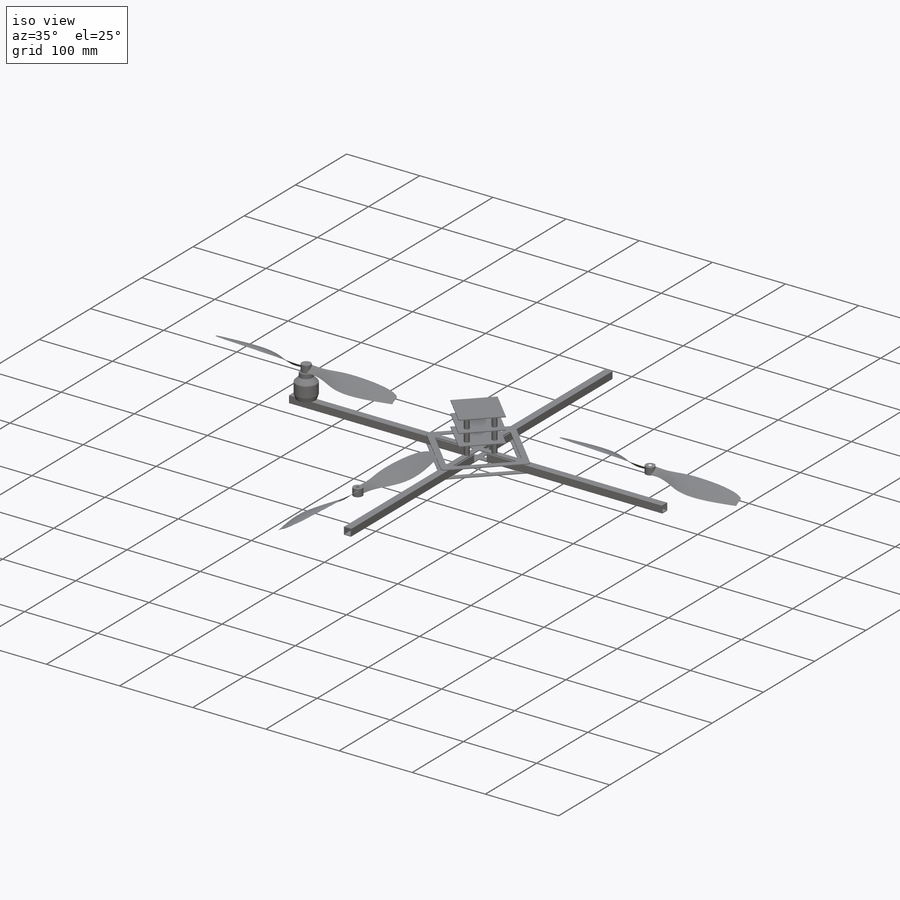
[diagram: iso view]
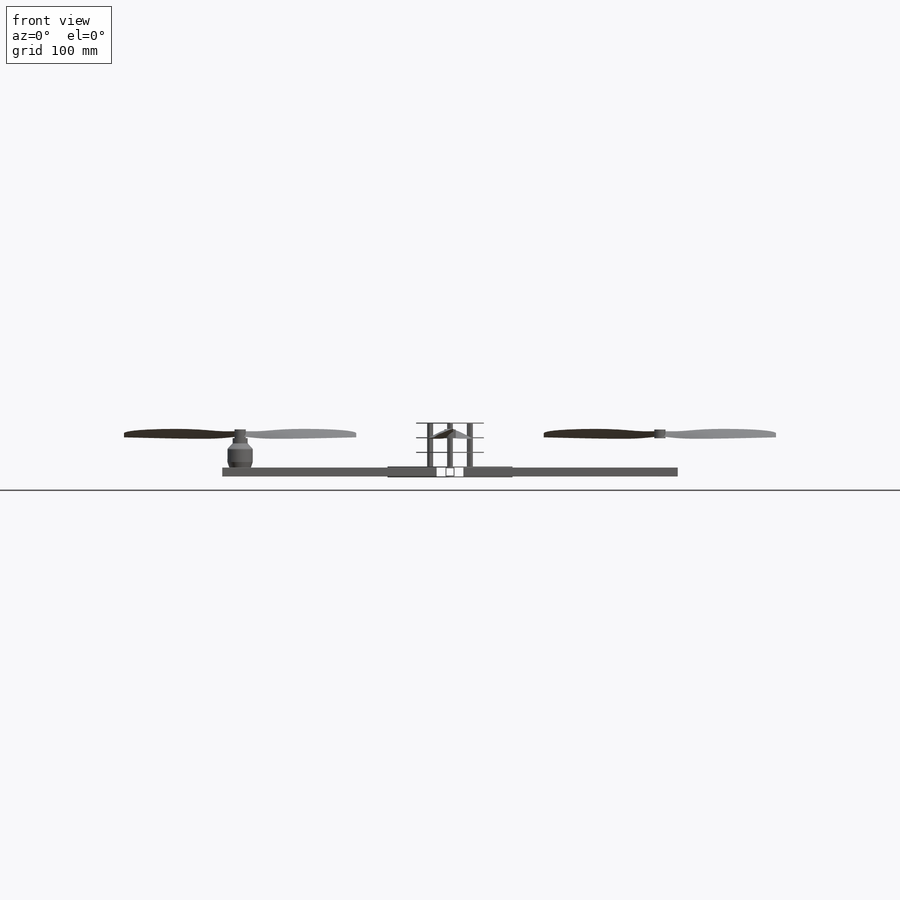
[diagram: front view]
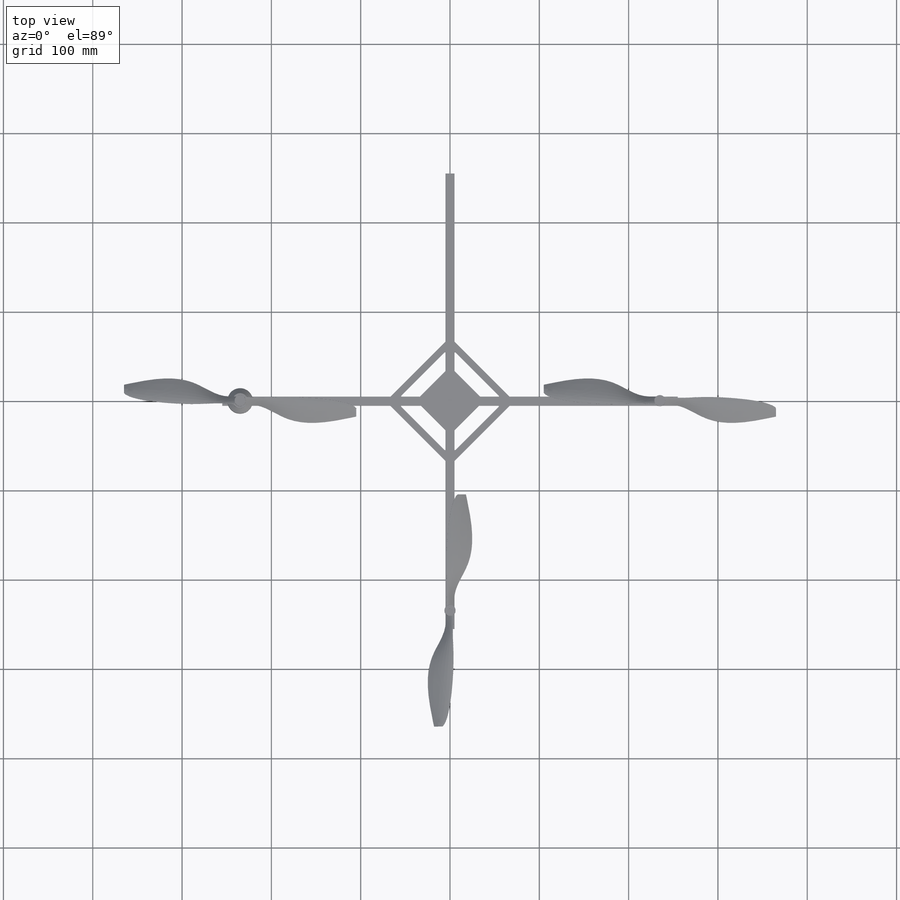
[diagram: top view]
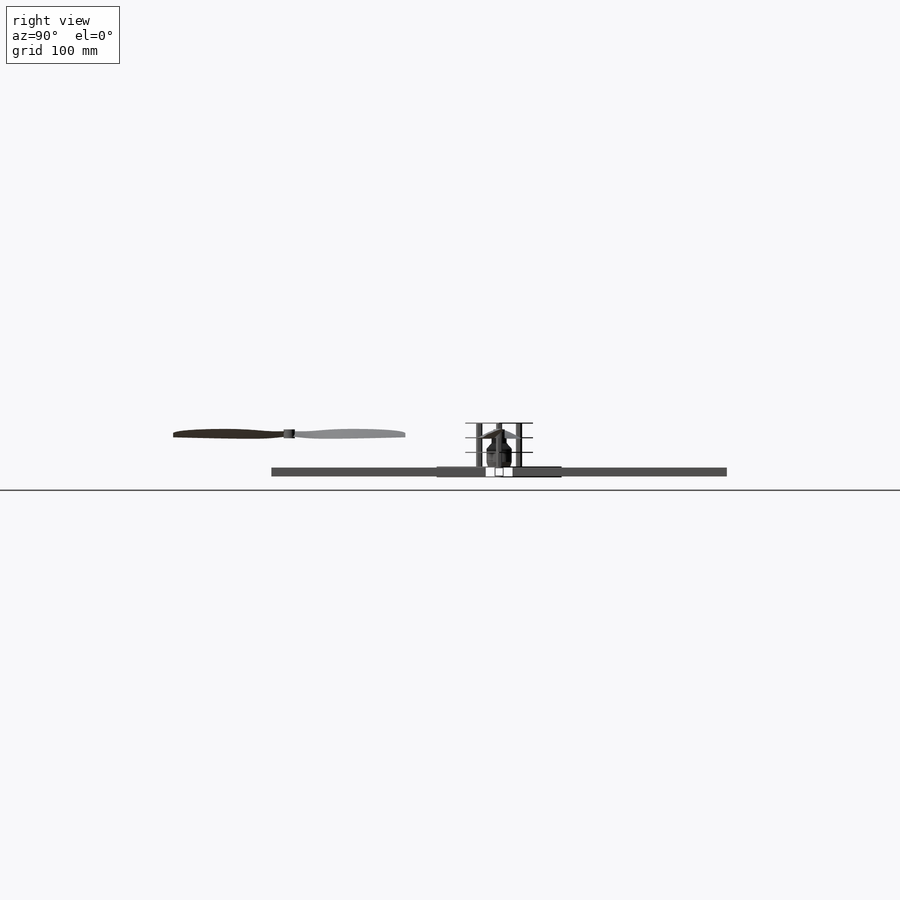
[diagram: right view]
SOLIDWORKS PART (.sldprt)
format: sldprt  version: not decoded by parser v0  size: 1,707,520 bytes
history: native  units: mm
features: sketch x16, plane x14, extrude x7, pattern_circular x4, fillet x4, pattern_linear x2, revolve x2, cut_extrude x2, move_body x2, material x1, mirror x1 (+16 scaffold rows collapsed; 2 parser-record rows omitted)
feature tree (73):
  scaffold x16  (default folders/planes/origin — collapsed)
  material  "Material <not specified>"
  plane  "Plane1"  Offset=15mm
  sketch  "Sketch1"  dims[D3=0.5mm D1=10.002mm D2=0.93mm]
  extrude  "MAIN-SPAR"  Depth=240mm
  pattern_circular  "SPAR-CirPattern2"  Count=4 Angle=360deg
  sketch  "Sketch3"  dims[c1.D2=4.0mm c1.D6=1.5mm c1.D1=101.4mm c1.D3=7.72mm c1.D4=7.72mm c1.D5=7.72mm c2.D4=3.86mm c2.D5=3.86mm]
  extrude  "BodyPlate"  Depth=1.05mm
  mirror  "Mirror1"
  sketch  "Sketch4"  dims[c1.D1=~5.426277mm c1.D2=6.0mm c2.D1=44.5mm]
  extrude  "Boss-Extrude4"  Depth=15.27mm
  sketch  "Sketch5"  dims[D1=53.7mm]
  extrude  "Boss-Extrude5"  Depth=1.09mm
  pattern_linear  "PCB-Pattern"  Count1=3 Count2=1 Spacing1=16.36mm Spacing2=50mm
  sketch  "Sketch9"  dims[D1=25.0mm]
  extrude  "GPS"  Depth=3.86mm
  sketch  "Sketch6"  dims[c1.D11=2.0mm c1.D1=235.0mm c1.D2=5.45mm c1.D3=27.0mm c1.D4=8.45mm c1.D5=42.65mm c2.D3=27.0mm c2.D6=9.85mm c2.D7=14.2mm c2.D8=12.15mm c2.D9=6.12mm c2.D10=6.2mm]
  revolve  "Motor"  Angle=360deg
  revolve  "Prop-10x4_5 Features1___EndTag___"  [1 undecoded]
  sketch  "Sketch1_Prop-10x4_5"  dims[D1=12.5mm]
  extrude  "Extrude1"  Depth=10mm
  plane  "Plane1_Prop-10x4_5"  Offset=10mm
  plane  "Plane2"  Offset=10mm
  plane  "Plane3"  Offset=10mm
  plane  "Plane4"  Offset=10mm
  plane  "Plane5"  Offset=10mm
  plane  "Plane6"  Offset=10mm
  plane  "Plane7"  Offset=10mm
  plane  "Plane8"  Offset=10mm
  plane  "Plane9"  Offset=10mm
  plane  "Plane10"  Offset=10mm
  plane  "Plane11"  Offset=10mm
  plane  "Plane12"  Offset=10mm
  plane  "Plane13"  Offset=10mm
  sketch  "Sketch2"  dims[c1.D1=~13.118282mm c2.D1=30.0deg c2.D2=11.2mm]
  sketch  "Sketch3_Prop-10x4_5"  dims[c1.D1=~6.628727mm c2.D1=40.0deg c2.D2=12.6mm]
  sketch  "Sketch4_Prop-10x4_5"  dims[D1=26.0mm]
  sketch  "Sketch5_Prop-10x4_5"  dims[D1=11.0mm]
  sketch  "3DSketch1"
  sketch  "3DSketch2"
  fillet  "Fillet1"  Radius=0.1mm
  fillet  "Fillet6"  [1 undecoded]
  pattern_linear  "Mirror1_Prop-10x4_5"  Spacing1=0.1mm  [1 undecoded]
  pattern_circular  "CirPattern1"  Count=2 Angle=360deg
  sketch  "Sketch7"
  cut_extrude  "Cut-Extrude2"  [1 undecoded]
  pattern_circular  "CirPattern3_Prop-10x4_5"  Count=2 Angle=360deg
  fillet  "Fillet7"  Radius=0.1mm
  sketch  "Sketch6_Prop-10x4_5"  dims[D1=4.0mm]
  cut_extrude  "Cut-Extrude1"  [1 undecoded]
  move_body  "Body-Move/Copy3"
  move_body  "Body-Move/Copy2"
  parser-record x2  (decoder bookkeeping rows leaked as tree rows — omitted from the tree; the rows remain in map.json)
  pattern_circular  "Motor-CirPattern5"  Count=4 Angle=360deg
  sketch  "Sketch10"  dims[D1=107.2mm D2=68.3mm]
  extrude  "Battery"  Depth=18mm
  fillet  "Fillet8"  Radius=3mm
decode coverage: 30 of 40 modeling features carry decoded parameters
note: ~ marks probable driven/reference dimensions
note: 5 parameter values undecoded
summary: no parameter record found for 4 features
note: suppression state not decoded; provenance and decode notes live in map.json
